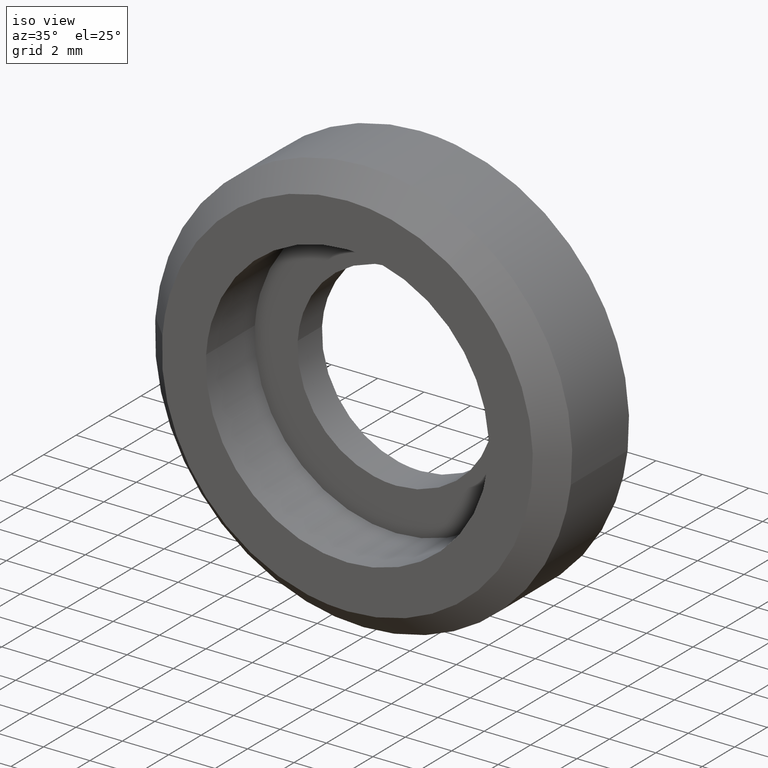
[diagram: clean part render]
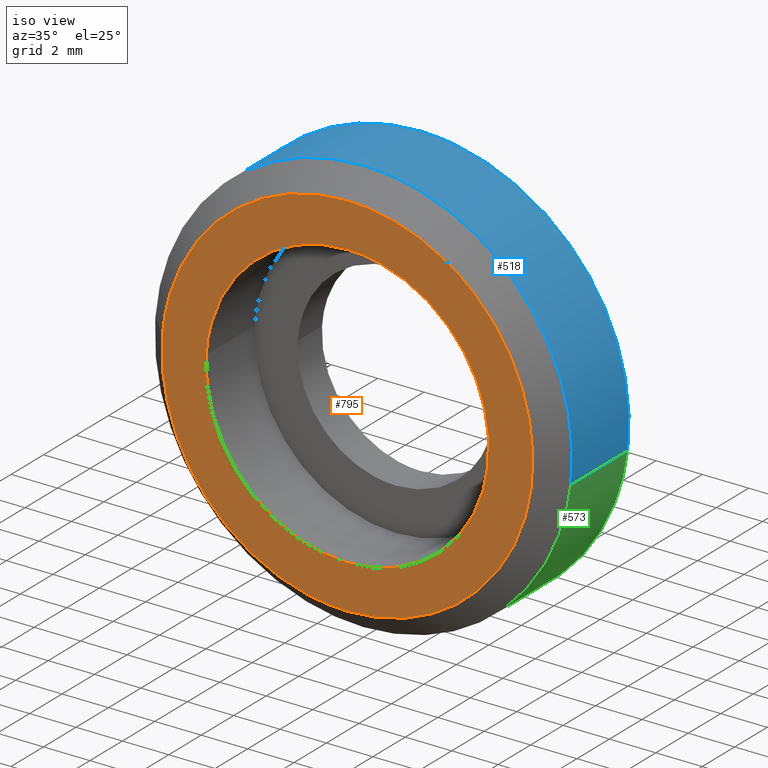
[diagram: same view with three faces highlighted in distinct colors, each labeled with its STEP entity id]
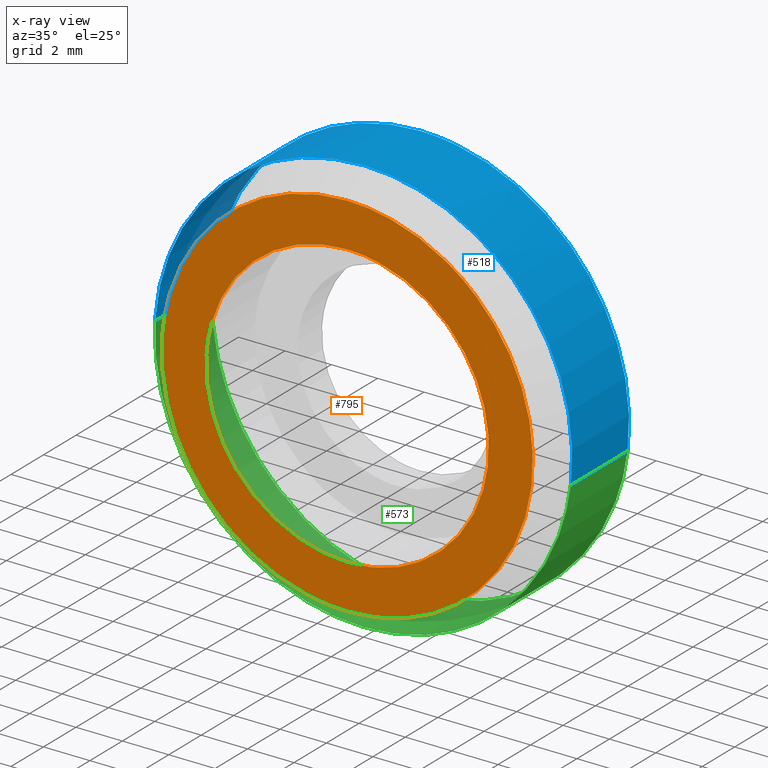
[diagram: x-ray of the same camera — body ghosted, the three highlighted faces saturated]
A machine part, iso view with three faces highlighted in distinct colors.
The next image is the same camera in x-ray (body ghosted, the three faces saturated) — at least one of them is partly hidden behind the body in this view.
Their STEP definitions:

[orange] entity #795 — the highlighted face is a freeform B-spline surface patch.
#85=CARTESIAN_POINT('',(6.057358815614055,-3.0,-0.720002901985149));
#86=VERTEX_POINT('',#85);
#92=CARTESIAN_POINT('',(9.184548E-016,-3.0,6.100000000000001));
#93=VERTEX_POINT('',#92);
#94=CARTESIAN_POINT('',(6.057358815614055,-3.000000000000000,-0.720002901985149));
#95=CARTESIAN_POINT('',(6.100000000000001,-3.000000000000000,-0.361264133824007));
#96=CARTESIAN_POINT('',(6.100000000000001,-3.0,0.0));
#97=CARTESIAN_POINT('',(6.100000000000001,-3.000000000000000,6.100000000000001));
#98=CARTESIAN_POINT('',(9.184548E-016,-3.0,6.100000000000001));
#106=(BOUNDED_CURVE()B_SPLINE_CURVE(2,(#94,#95,#96,#97,#98),.UNSPECIFIED.,.F.,.U.)B_SPLINE_CURVE_WITH_KNOTS((3,2,3),(0.229562638949397,0.250000000000000,0.500000000000000),.UNSPECIFIED.)CURVE()GEOMETRIC_REPRESENTATION_ITEM()RATIONAL_B_SPLINE_CURVE((0.956027078445069,0.976056142151345,1.0,0.707106781186547,1.0))REPRESENTATION_ITEM(''));
#107=EDGE_CURVE('',#86,#93,#106,.T.);
#109=CARTESIAN_POINT('',(-6.088622513648906,-2.999999999999999,0.372392113600405));
#110=VERTEX_POINT('',#109);
#111=CARTESIAN_POINT('',(9.184548E-016,-3.0,6.100000000000001));
#112=CARTESIAN_POINT('',(-5.738310763839918,-3.000000000000000,6.100000000000001));
#113=CARTESIAN_POINT('',(-6.088622513648906,-2.999999999999999,0.372392113600405));
#121=(BOUNDED_CURVE()B_SPLINE_CURVE(2,(#111,#112,#113),.UNSPECIFIED.,.F.,.U.)B_SPLINE_CURVE_WITH_KNOTS((3,3),(0.500000000000000,0.739333074962978),.UNSPECIFIED.)CURVE()GEOMETRIC_REPRESENTATION_ITEM()RATIONAL_B_SPLINE_CURVE((1.0,0.719603861222288,0.976072283255902))REPRESENTATION_ITEM(''));
#122=EDGE_CURVE('',#93,#110,#121,.T.);
#196=CARTESIAN_POINT('',(9.184548E-016,-3.0,-6.100000000000001));
#197=VERTEX_POINT('',#196);
#198=CARTESIAN_POINT('',(-6.088622513648906,-2.999999999999999,0.372392113600405));
#199=CARTESIAN_POINT('',(-6.100000000000001,-3.000000000000000,0.186369861764032));
#200=CARTESIAN_POINT('',(-6.100000000000000,-3.0,0.0));
#201=CARTESIAN_POINT('',(-6.100000000000000,-3.000000000000000,-6.100000000000001));
#202=CARTESIAN_POINT('',(9.184548E-016,-3.0,-6.100000000000001));
#210=(BOUNDED_CURVE()B_SPLINE_CURVE(2,(#198,#199,#200,#201,#202),.UNSPECIFIED.,.F.,.U.)B_SPLINE_CURVE_WITH_KNOTS((3,2,3),(0.739333074962978,0.750000000000000,1.0),.UNSPECIFIED.)CURVE()GEOMETRIC_REPRESENTATION_ITEM()RATIONAL_B_SPLINE_CURVE((0.976072283255902,0.987502919964259,1.0,0.707106781186547,1.0))REPRESENTATION_ITEM(''));
#211=EDGE_CURVE('',#110,#197,#210,.T.);
#213=CARTESIAN_POINT('',(9.184548E-016,-3.0,-6.100000000000001));
#214=CARTESIAN_POINT('',(5.417869949073819,-3.000000000000000,-6.100000000000002));
#215=CARTESIAN_POINT('',(6.057358815614055,-3.000000000000000,-0.720002901985149));
#223=(BOUNDED_CURVE()B_SPLINE_CURVE(2,(#213,#214,#215),.UNSPECIFIED.,.F.,.U.)B_SPLINE_CURVE_WITH_KNOTS((3,3),(0.0,0.229562638949397),.UNSPECIFIED.)CURVE()GEOMETRIC_REPRESENTATION_ITEM()RATIONAL_B_SPLINE_CURVE((1.0,0.731050639035202,0.956027078445069))REPRESENTATION_ITEM(''));
#224=EDGE_CURVE('',#197,#86,#223,.T.);
#271=CARTESIAN_POINT('',(4.302800969062561,-2.999999999999947,6.744311960514219));
#272=VERTEX_POINT('',#271);
#278=CARTESIAN_POINT('',(9.184548E-016,-3.0,-7.999990000000000));
#279=VERTEX_POINT('',#278);
#280=CARTESIAN_POINT('',(9.184548E-016,-3.0,-7.999990000000000));
#281=CARTESIAN_POINT('',(7.999990000000002,-3.0,-7.999990000000001));
#282=CARTESIAN_POINT('',(7.999990000000002,-3.0,0.0));
#283=CARTESIAN_POINT('',(7.999990000000002,-3.0,4.385543766179844));
#284=CARTESIAN_POINT('',(4.302800969062561,-2.999999999999947,6.744311960514219));
#292=(BOUNDED_CURVE()B_SPLINE_CURVE(2,(#280,#281,#282,#283,#284),.UNSPECIFIED.,.F.,.U.)B_SPLINE_CURVE_WITH_KNOTS((3,2,3),(0.0,0.250000000000000,0.407950112627532),.UNSPECIFIED.)CURVE()GEOMETRIC_REPRESENTATION_ITEM()RATIONAL_B_SPLINE_CURVE((1.0,0.707106781186548,1.0,0.814949932402299,0.863729296954913))REPRESENTATION_ITEM(''));
#293=EDGE_CURVE('',#279,#272,#292,.T.);
#295=CARTESIAN_POINT('',(-7.975328700692701,-2.999999999997446,0.627671981251446));
#296=VERTEX_POINT('',#295);
#297=CARTESIAN_POINT('',(-7.975328700692701,-2.999999999997446,0.627671981251446));
#298=CARTESIAN_POINT('',(-7.999989999999999,-3.000000000000000,0.314320463179817));
#299=CARTESIAN_POINT('',(-7.999989999999999,-3.0,0.0));
#300=CARTESIAN_POINT('',(-7.999990000000000,-3.0,-7.999990000000001));
#301=CARTESIAN_POINT('',(9.184548E-016,-3.0,-7.999990000000000));
#309=(BOUNDED_CURVE()B_SPLINE_CURVE(2,(#297,#298,#299,#300,#301),.UNSPECIFIED.,.F.,.U.)B_SPLINE_CURVE_WITH_KNOTS((3,2,3),(0.736331300631931,0.750000000000000,1.0),.UNSPECIFIED.)CURVE()GEOMETRIC_REPRESENTATION_ITEM()RATIONAL_B_SPLINE_CURVE((0.969723356170071,0.983986122580372,1.0,0.707106781186548,1.0))REPRESENTATION_ITEM(''));
#310=EDGE_CURVE('',#296,#279,#309,.T.);
#414=CARTESIAN_POINT('',(9.184548E-016,-3.0,7.999990000000000));
#415=VERTEX_POINT('',#414);
#416=CARTESIAN_POINT('',(9.184548E-016,-3.0,7.999990000000000));
#417=CARTESIAN_POINT('',(-7.395114689324576,-3.000000000000000,7.999990000000000));
#418=CARTESIAN_POINT('',(-7.975328700692701,-2.999999999997446,0.627671981251446));
#426=(BOUNDED_CURVE()B_SPLINE_CURVE(2,(#416,#417,#418),.UNSPECIFIED.,.F.,.U.)B_SPLINE_CURVE_WITH_KNOTS((3,3),(0.500000000000000,0.736331300631931),.UNSPECIFIED.)CURVE()GEOMETRIC_REPRESENTATION_ITEM()RATIONAL_B_SPLINE_CURVE((1.0,0.723120658606176,0.969723356170071))REPRESENTATION_ITEM(''));
#427=EDGE_CURVE('',#415,#296,#426,.T.);
#429=CARTESIAN_POINT('',(4.302800969062561,-2.999999999999947,6.744311960514219));
#430=CARTESIAN_POINT('',(2.334621524754645,-3.000000000000000,7.999990000000000));
#431=CARTESIAN_POINT('',(9.184548E-016,-3.0,7.999990000000000));
#439=(BOUNDED_CURVE()B_SPLINE_CURVE(2,(#429,#430,#431),.UNSPECIFIED.,.F.,.U.)B_SPLINE_CURVE_WITH_KNOTS((3,3),(0.407950112627532,0.500000000000000),.UNSPECIFIED.)CURVE()GEOMETRIC_REPRESENTATION_ITEM()RATIONAL_B_SPLINE_CURVE((0.863729296954913,0.892156848784248,1.0))REPRESENTATION_ITEM(''));
#440=EDGE_CURVE('',#272,#415,#439,.T.);
#778=CARTESIAN_POINT('',(-8.796716393125982,-3.0,-8.799188969988933));
#779=CARTESIAN_POINT('',(-8.796716393125982,-3.0,8.799189399141840));
#780=CARTESIAN_POINT('',(8.796113004140231,-3.0,-8.799188969988933));
#781=CARTESIAN_POINT('',(8.796113004140231,-3.0,8.799189399141840));
#782=B_SPLINE_SURFACE_WITH_KNOTS('',1,1,((#778,#780),(#779,#781)),.UNSPECIFIED.,.F.,.F.,.U.,(2,2),(2,2),(0.0,17.598378369130771),(0.0,17.592829397266222),.UNSPECIFIED.);
#783=ORIENTED_EDGE('',*,*,#293,.T.);
#784=ORIENTED_EDGE('',*,*,#440,.T.);
#785=ORIENTED_EDGE('',*,*,#427,.T.);
#786=ORIENTED_EDGE('',*,*,#310,.T.);
#787=EDGE_LOOP('',(#783,#784,#785,#786));
#788=FACE_OUTER_BOUND('',#787,.T.);
#789=ORIENTED_EDGE('',*,*,#122,.F.);
#790=ORIENTED_EDGE('',*,*,#107,.F.);
#791=ORIENTED_EDGE('',*,*,#224,.F.);
#792=ORIENTED_EDGE('',*,*,#211,.F.);
#793=EDGE_LOOP('',(#789,#790,#791,#792));
#794=FACE_BOUND('',#793,.T.);
#795=ADVANCED_FACE('',(#788,#794),#782,.F.);

[blue] entity #518 — the highlighted face is a freeform B-spline surface patch.
#252=CARTESIAN_POINT('',(8.937086413742874,-1.999999999999977,-1.062302420810438));
#253=VERTEX_POINT('',#252);
#254=CARTESIAN_POINT('',(4.840657141017076,-1.999999999999926,7.587360439778891));
#255=VERTEX_POINT('',#254);
#256=CARTESIAN_POINT('',(8.937086413742874,-1.999999999999977,-1.062302420810437));
#257=CARTESIAN_POINT('',(9.0,-2.000000000000000,-0.533014201234475));
#258=CARTESIAN_POINT('',(9.000000000000002,-2.0,0.0));
#259=CARTESIAN_POINT('',(9.000000000000004,-2.000000000000000,4.933742904130543));
#260=CARTESIAN_POINT('',(4.840657141017076,-1.999999999999927,7.587360439778891));
#268=(BOUNDED_CURVE()B_SPLINE_CURVE(2,(#256,#257,#258,#259,#260),.UNSPECIFIED.,.F.,.U.)B_SPLINE_CURVE_WITH_KNOTS((3,2,3),(0.229562581136241,0.250000000000000,0.407950112627521),.UNSPECIFIED.)CURVE()GEOMETRIC_REPRESENTATION_ITEM()RATIONAL_B_SPLINE_CURVE((0.956026965128767,0.976056074419019,1.0,0.814949932402312,0.863729296954906))REPRESENTATION_ITEM(''));
#269=EDGE_CURVE('',#253,#255,#268,.T.);
#312=CARTESIAN_POINT('',(-8.972256003598357,-1.999999999999478,0.706131861554639));
#313=VERTEX_POINT('',#312);
#319=CARTESIAN_POINT('',(-8.983213382410629,-1.999999999999985,0.549433641187123));
#320=VERTEX_POINT('',#319);
#321=CARTESIAN_POINT('',(-8.972256003598357,-1.999999999999478,0.706131861554639));
#322=CARTESIAN_POINT('',(-8.978418449350123,-2.000000000000000,0.627830564151339));
#323=CARTESIAN_POINT('',(-8.983213382410630,-1.999999999999985,0.549433641187123));
#331=(BOUNDED_CURVE()B_SPLINE_CURVE(2,(#321,#322,#323),.UNSPECIFIED.,.F.,.U.)B_SPLINE_CURVE_WITH_KNOTS((3,3),(0.736331300632614,0.739333023987528),.UNSPECIFIED.)CURVE()GEOMETRIC_REPRESENTATION_ITEM()RATIONAL_B_SPLINE_CURVE((0.969723356171497,0.972855539994323,0.976072174005725))REPRESENTATION_ITEM(''));
#332=EDGE_CURVE('',#313,#320,#331,.T.);
#385=CARTESIAN_POINT('',(9.184548E-016,-2.0,9.0));
#386=VERTEX_POINT('',#385);
#387=CARTESIAN_POINT('',(4.840657141017076,-1.999999999999926,7.587360439778891));
#388=CARTESIAN_POINT('',(2.626452498414934,-2.0,9.000000000000002));
#389=CARTESIAN_POINT('',(9.184548E-016,-2.0,9.0));
#397=(BOUNDED_CURVE()B_SPLINE_CURVE(2,(#387,#388,#389),.UNSPECIFIED.,.F.,.U.)B_SPLINE_CURVE_WITH_KNOTS((3,3),(0.407950112627522,0.500000000000000),.UNSPECIFIED.)CURVE()GEOMETRIC_REPRESENTATION_ITEM()RATIONAL_B_SPLINE_CURVE((0.863729296954906,0.892156848784236,1.0))REPRESENTATION_ITEM(''));
#398=EDGE_CURVE('',#255,#386,#397,.T.);
#400=CARTESIAN_POINT('',(9.184548E-016,-2.0,9.0));
#401=CARTESIAN_POINT('',(-8.319514424916472,-2.000000000000000,9.0));
#402=CARTESIAN_POINT('',(-8.972256003598357,-1.999999999999478,0.706131861554639));
#410=(BOUNDED_CURVE()B_SPLINE_CURVE(2,(#400,#401,#402),.UNSPECIFIED.,.F.,.U.)B_SPLINE_CURVE_WITH_KNOTS((3,3),(0.500000000000000,0.736331300632615),.UNSPECIFIED.)CURVE()GEOMETRIC_REPRESENTATION_ITEM()RATIONAL_B_SPLINE_CURVE((1.0,0.723120658605375,0.969723356171499))REPRESENTATION_ITEM(''));
#411=EDGE_CURVE('',#386,#313,#410,.T.);
#446=CARTESIAN_POINT('',(8.937085737273000,1.587500000000000,-1.062308111910826));
#447=CARTESIAN_POINT('',(8.967488539037452,1.587500000000000,-0.806532557741799));
#448=CARTESIAN_POINT('',(8.983213185796801,1.587500000000000,-0.549436855813713));
#449=CARTESIAN_POINT('',(9.532650041610514,1.587500000000000,8.433776329983086));
#450=CARTESIAN_POINT('',(0.549436855813714,1.587500000000000,8.983213185796799));
#451=CARTESIAN_POINT('',(-8.433776329983084,1.587500000000000,9.532650041610513));
#452=CARTESIAN_POINT('',(-8.983213185796798,1.587500000000000,0.549436855813713));
#453=CARTESIAN_POINT('',(8.937085737273000,-2.089687500000001,-1.062308111910826));
#454=CARTESIAN_POINT('',(8.967488539037452,-2.089687500000001,-0.806532557741799));
#455=CARTESIAN_POINT('',(8.983213185796801,-2.089687500000000,-0.549436855813713));
#456=CARTESIAN_POINT('',(9.532650041610514,-2.089687500000001,8.433776329983086));
#457=CARTESIAN_POINT('',(0.549436855813714,-2.089687500000000,8.983213185796799));
#458=CARTESIAN_POINT('',(-8.433776329983084,-2.089687500000001,9.532650041610513));
#459=CARTESIAN_POINT('',(-8.983213185796798,-2.089687500000000,0.549436855813713));
#467=(BOUNDED_SURFACE()B_SPLINE_SURFACE(2,1,((#446,#453),(#447,#454),(#448,#455),(#449,#456),(#450,#457),(#451,#458),(#452,#459)),.UNSPECIFIED.,.F.,.F.,.U.)B_SPLINE_SURFACE_WITH_KNOTS((3,2,2,3),(2,2),(0.0,0.596467529817257,15.508155775248680,30.419844020680092),(0.0,3.677187500000001),.UNSPECIFIED.)GEOMETRIC_REPRESENTATION_ITEM()RATIONAL_B_SPLINE_SURFACE(((0.977505800795127,0.977505800795127),(0.988284271247462,0.988284271247462),(1.0,1.0),(0.707106781186548,0.707106781186548),(1.0,1.0),(0.707106781186548,0.707106781186548),(1.0,1.0)))REPRESENTATION_ITEM('')SURFACE());
#468=ORIENTED_EDGE('',*,*,#269,.F.);
#469=CARTESIAN_POINT('',(8.937086405398947,1.500000000000000,-1.062302491007743));
#470=VERTEX_POINT('',#469);
#471=CARTESIAN_POINT('',(8.937086405398947,1.500000000000000,-1.062302491007743));
#472=CARTESIAN_POINT('',(8.937086413742874,-1.999999999999977,-1.062302420810438));
#473=QUASI_UNIFORM_CURVE('',1,(#471,#472),.UNSPECIFIED.,.F.,.U.);
#474=EDGE_CURVE('',#470,#253,#473,.T.);
#475=ORIENTED_EDGE('',*,*,#474,.F.);
#476=CARTESIAN_POINT('',(9.184548E-016,1.500000000000000,9.0));
#477=VERTEX_POINT('',#476);
#478=CARTESIAN_POINT('',(8.937086405398947,1.500000000000000,-1.062302491007743));
#479=CARTESIAN_POINT('',(9.000000000000002,1.500000000000000,-0.533014236704179));
#480=CARTESIAN_POINT('',(9.000000000000002,1.500000000000000,0.0));
#481=CARTESIAN_POINT('',(9.000000000000004,1.500000000000000,9.0));
#482=CARTESIAN_POINT('',(9.184548E-016,1.500000000000000,9.0));
#490=(BOUNDED_CURVE()B_SPLINE_CURVE(2,(#478,#479,#480,#481,#482),.UNSPECIFIED.,.F.,.U.)B_SPLINE_CURVE_WITH_KNOTS((3,2,3),(0.229562579808786,0.250000000000000,0.500000000000000),.UNSPECIFIED.)CURVE()GEOMETRIC_REPRESENTATION_ITEM()RATIONAL_B_SPLINE_CURVE((0.956026962526900,0.976056072863809,1.0,0.707106781186547,1.0))REPRESENTATION_ITEM(''));
#491=EDGE_CURVE('',#470,#477,#490,.T.);
#492=ORIENTED_EDGE('',*,*,#491,.T.);
#493=CARTESIAN_POINT('',(-8.983213379986580,1.500000000000000,0.549433680820450));
#494=VERTEX_POINT('',#493);
#495=CARTESIAN_POINT('',(9.184548E-016,1.500000000000000,9.0));
#496=CARTESIAN_POINT('',(-8.466357600060091,1.500000000000000,9.0));
#497=CARTESIAN_POINT('',(-8.983213379986580,1.500000000000000,0.549433680820450));
#505=(BOUNDED_CURVE()B_SPLINE_CURVE(2,(#495,#496,#497),.UNSPECIFIED.,.F.,.U.)B_SPLINE_CURVE_WITH_KNOTS((3,3),(0.500000000000000,0.739333023226263),.UNSPECIFIED.)CURVE()GEOMETRIC_REPRESENTATION_ITEM()RATIONAL_B_SPLINE_CURVE((1.0,0.719603921835620,0.976072172374189))REPRESENTATION_ITEM(''));
#506=EDGE_CURVE('',#477,#494,#505,.T.);
#507=ORIENTED_EDGE('',*,*,#506,.T.);
#508=CARTESIAN_POINT('',(-8.983213379986580,1.500000000000000,0.549433680820450));
#509=CARTESIAN_POINT('',(-8.983213382410629,-1.999999999999985,0.549433641187123));
#510=QUASI_UNIFORM_CURVE('',1,(#508,#509),.UNSPECIFIED.,.F.,.U.);
#511=EDGE_CURVE('',#494,#320,#510,.T.);
#512=ORIENTED_EDGE('',*,*,#511,.T.);
#513=ORIENTED_EDGE('',*,*,#332,.F.);
#514=ORIENTED_EDGE('',*,*,#411,.F.);
#515=ORIENTED_EDGE('',*,*,#398,.F.);
#516=EDGE_LOOP('',(#468,#475,#492,#507,#512,#513,#514,#515));
#517=FACE_OUTER_BOUND('',#516,.T.);
#518=ADVANCED_FACE('',(#517),#467,.T.);

[green] entity #573 — the highlighted face is a freeform B-spline surface patch.
#252=CARTESIAN_POINT('',(8.937086413742874,-1.999999999999977,-1.062302420810438));
#253=VERTEX_POINT('',#252);
#319=CARTESIAN_POINT('',(-8.983213382410629,-1.999999999999985,0.549433641187123));
#320=VERTEX_POINT('',#319);
#334=CARTESIAN_POINT('',(9.184548E-016,-2.0,-9.0));
#335=VERTEX_POINT('',#334);
#336=CARTESIAN_POINT('',(-8.983213382410630,-1.999999999999985,0.549433641187123));
#337=CARTESIAN_POINT('',(-8.999999999999998,-2.000000000000000,0.274973257867300));
#338=CARTESIAN_POINT('',(-8.999999999999998,-2.0,0.0));
#339=CARTESIAN_POINT('',(-8.999999999999998,-2.0,-9.0));
#340=CARTESIAN_POINT('',(9.184548E-016,-2.0,-9.0));
#348=(BOUNDED_CURVE()B_SPLINE_CURVE(2,(#336,#337,#338,#339,#340),.UNSPECIFIED.,.F.,.U.)B_SPLINE_CURVE_WITH_KNOTS((3,2,3),(0.739333023987528,0.750000000000000,1.0),.UNSPECIFIED.)CURVE()GEOMETRIC_REPRESENTATION_ITEM()RATIONAL_B_SPLINE_CURVE((0.976072174005725,0.987502860242804,1.0,0.707106781186547,1.0))REPRESENTATION_ITEM(''));
#349=EDGE_CURVE('',#320,#335,#348,.T.);
#351=CARTESIAN_POINT('',(9.184548E-016,-2.0,-9.0));
#352=CARTESIAN_POINT('',(7.993575859671106,-2.000000000000000,-9.000000000000002));
#353=CARTESIAN_POINT('',(8.937086413742874,-1.999999999999977,-1.062302420810437));
#361=(BOUNDED_CURVE()B_SPLINE_CURVE(2,(#351,#352,#353),.UNSPECIFIED.,.F.,.U.)B_SPLINE_CURVE_WITH_KNOTS((3,3),(0.0,0.229562581136241),.UNSPECIFIED.)CURVE()GEOMETRIC_REPRESENTATION_ITEM()RATIONAL_B_SPLINE_CURVE((1.0,0.731050706767529,0.956026965128767))REPRESENTATION_ITEM(''));
#362=EDGE_CURVE('',#335,#253,#361,.T.);
#469=CARTESIAN_POINT('',(8.937086405398947,1.500000000000000,-1.062302491007743));
#470=VERTEX_POINT('',#469);
#471=CARTESIAN_POINT('',(8.937086405398947,1.500000000000000,-1.062302491007743));
#472=CARTESIAN_POINT('',(8.937086413742874,-1.999999999999977,-1.062302420810438));
#473=QUASI_UNIFORM_CURVE('',1,(#471,#472),.UNSPECIFIED.,.F.,.U.);
#474=EDGE_CURVE('',#470,#253,#473,.T.);
#493=CARTESIAN_POINT('',(-8.983213379986580,1.500000000000000,0.549433680820450));
#494=VERTEX_POINT('',#493);
#508=CARTESIAN_POINT('',(-8.983213379986580,1.500000000000000,0.549433680820450));
#509=CARTESIAN_POINT('',(-8.983213382410629,-1.999999999999985,0.549433641187123));
#510=QUASI_UNIFORM_CURVE('',1,(#508,#509),.UNSPECIFIED.,.F.,.U.);
#511=EDGE_CURVE('',#494,#320,#510,.T.);
#519=CARTESIAN_POINT('',(-8.983213185796798,1.587500000000000,0.549436855813713));
#520=CARTESIAN_POINT('',(-9.532650041610511,1.587500000000000,-8.433776329983086));
#521=CARTESIAN_POINT('',(-0.549436855813712,1.587500000000000,-8.983213185796799));
#522=CARTESIAN_POINT('',(7.933891417555508,1.587500000000001,-9.502075770592745));
#523=CARTESIAN_POINT('',(8.937085737273000,1.587500000000000,-1.062308111910826));
#524=CARTESIAN_POINT('',(-8.983213185796798,-2.089687500000000,0.549436855813713));
#525=CARTESIAN_POINT('',(-9.532650041610511,-2.089687500000001,-8.433776329983086));
#526=CARTESIAN_POINT('',(-0.549436855813712,-2.089687500000000,-8.983213185796799));
#527=CARTESIAN_POINT('',(7.933891417555508,-2.089687500000000,-9.502075770592745));
#528=CARTESIAN_POINT('',(8.937085737273000,-2.089687500000001,-1.062308111910826));
#536=(BOUNDED_SURFACE()B_SPLINE_SURFACE(2,1,((#519,#524),(#520,#525),(#521,#526),(#522,#527),(#523,#528)),.UNSPECIFIED.,.F.,.F.,.U.)B_SPLINE_SURFACE_WITH_KNOTS((3,2,3),(2,2),(0.0,14.911688245431421,29.226908961045581),(0.0,3.677187500000001),.UNSPECIFIED.)GEOMETRIC_REPRESENTATION_ITEM()RATIONAL_B_SPLINE_SURFACE(((1.0,1.0),(0.707106781186548,0.707106781186548),(1.0,1.0),(0.718822509939086,0.718822509939086),(0.977505800795127,0.977505800795127)))REPRESENTATION_ITEM('')SURFACE());
#537=ORIENTED_EDGE('',*,*,#362,.F.);
#538=ORIENTED_EDGE('',*,*,#349,.F.);
#539=ORIENTED_EDGE('',*,*,#511,.F.);
#540=CARTESIAN_POINT('',(9.184548E-016,1.500000000000000,-9.0));
#541=VERTEX_POINT('',#540);
#542=CARTESIAN_POINT('',(-8.983213379986580,1.500000000000000,0.549433680820450));
#543=CARTESIAN_POINT('',(-8.999999999999998,1.500000000000000,0.274973277739524));
#544=CARTESIAN_POINT('',(-8.999999999999998,1.500000000000000,0.0));
#545=CARTESIAN_POINT('',(-8.999999999999998,1.500000000000000,-9.0));
#546=CARTESIAN_POINT('',(9.184548E-016,1.500000000000000,-9.0));
#554=(BOUNDED_CURVE()B_SPLINE_CURVE(2,(#542,#543,#544,#545,#546),.UNSPECIFIED.,.F.,.U.)B_SPLINE_CURVE_WITH_KNOTS((3,2,3),(0.739333023226263,0.750000000000000,1.0),.UNSPECIFIED.)CURVE()GEOMETRIC_REPRESENTATION_ITEM()RATIONAL_B_SPLINE_CURVE((0.976072172374189,0.987502859350927,1.0,0.707106781186547,1.0))REPRESENTATION_ITEM(''));
#555=EDGE_CURVE('',#494,#541,#554,.T.);
#556=ORIENTED_EDGE('',*,*,#555,.T.);
#557=CARTESIAN_POINT('',(9.184548E-016,1.500000000000000,-9.0));
#558=CARTESIAN_POINT('',(7.993575796442722,1.500000000000000,-9.000000000000002));
#559=CARTESIAN_POINT('',(8.937086405398947,1.500000000000000,-1.062302491007743));
#567=(BOUNDED_CURVE()B_SPLINE_CURVE(2,(#557,#558,#559),.UNSPECIFIED.,.F.,.U.)B_SPLINE_CURVE_WITH_KNOTS((3,3),(0.0,0.229562579808786),.UNSPECIFIED.)CURVE()GEOMETRIC_REPRESENTATION_ITEM()RATIONAL_B_SPLINE_CURVE((1.0,0.731050708322738,0.956026962526900))REPRESENTATION_ITEM(''));
#568=EDGE_CURVE('',#541,#470,#567,.T.);
#569=ORIENTED_EDGE('',*,*,#568,.T.);
#570=ORIENTED_EDGE('',*,*,#474,.T.);
#571=EDGE_LOOP('',(#537,#538,#539,#556,#569,#570));
#572=FACE_OUTER_BOUND('',#571,.T.);
#573=ADVANCED_FACE('',(#572),#536,.T.);